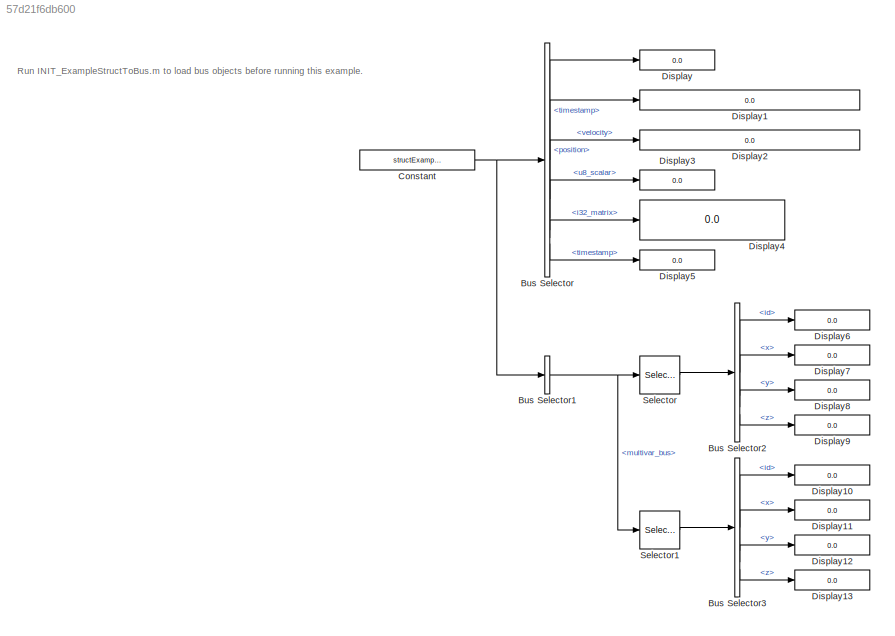
MODEL slx_57d21f6db600
KIND model
CONFIG AbsTol = auto
CONFIG EnableMultiTasking = off
CONFIG FixedStep = 0.01
CONFIG MaxStep = auto
CONFIG MinStep = auto
CONFIG RelTol = 1e-3
CONFIG SampleTimeConstraint = Unconstrained
CONFIG SolverName = FixedStepAuto
CONFIG StartTime = 0.0
CONFIG StopTime = 0
BLOCK [BusSelector] Bus Selector
  OutputSignals = timestamp,position,velocity,types.u8_scalar,types.i32_matrix,nested_bus.timestamp
BLOCK [BusSelector] Bus Selector1
  OutputSignals = multivar_bus
BLOCK [BusSelector] Bus Selector2
  OutputSignals = id,x,y,z
BLOCK [BusSelector] Bus Selector3
  OutputSignals = id,x,y,z
BLOCK [Constant] Constant
  OutDataTypeStr = Bus: busExample
  Value = structExample
BLOCK [Display] Display
  Decimation = 1
BLOCK [Display] Display1
  Decimation = 1
BLOCK [Display] Display10
  Decimation = 1
BLOCK [Display] Display11
  Decimation = 1
BLOCK [Display] Display12
  Decimation = 1
BLOCK [Display] Display13
  Decimation = 1
BLOCK [Display] Display2
  Decimation = 1
BLOCK [Display] Display3
  Decimation = 1
BLOCK [Display] Display4
  Decimation = 1
BLOCK [Display] Display5
  Decimation = 1
BLOCK [Display] Display6
  Decimation = 1
BLOCK [Display] Display7
  Decimation = 1
BLOCK [Display] Display8
  Decimation = 1
BLOCK [Display] Display9
  Decimation = 1
BLOCK [Selector] Selector
  IndexOptions = Index vector (dialog)
  Indices = 1
  InputPortWidth = 2
  OutputSizes = 1
BLOCK [Selector] Selector1
  IndexOptions = Index vector (dialog)
  Indices = 2
  InputPortWidth = 2
  OutputSizes = 1
ANNOTATION (root): Run INIT_ExampleStructToBus.m to load bus objects before running this example.
NET Bus Selector1:1 -> Selector1:1, Selector:1
LINE Bus Selector2:1 -> Display6:1
LINE Bus Selector2:2 -> Display7:1
LINE Bus Selector2:3 -> Display8:1
LINE Bus Selector2:4 -> Display9:1
LINE Bus Selector3:1 -> Display10:1
LINE Bus Selector3:2 -> Display11:1
LINE Bus Selector3:3 -> Display12:1
LINE Bus Selector3:4 -> Display13:1
LINE Bus Selector:1 -> Display:1
LINE Bus Selector:2 -> Display1:1
LINE Bus Selector:3 -> Display2:1
LINE Bus Selector:4 -> Display3:1
LINE Bus Selector:5 -> Display4:1
LINE Bus Selector:6 -> Display5:1
NET Constant:1 -> Bus Selector1:1, Bus Selector:1
LINE Selector1:1 -> Bus Selector3:1
LINE Selector:1 -> Bus Selector2:1
note: NET lines group one-source signal fan-out (src -> all destinations, sorted); 1:1 wires keep LINE
